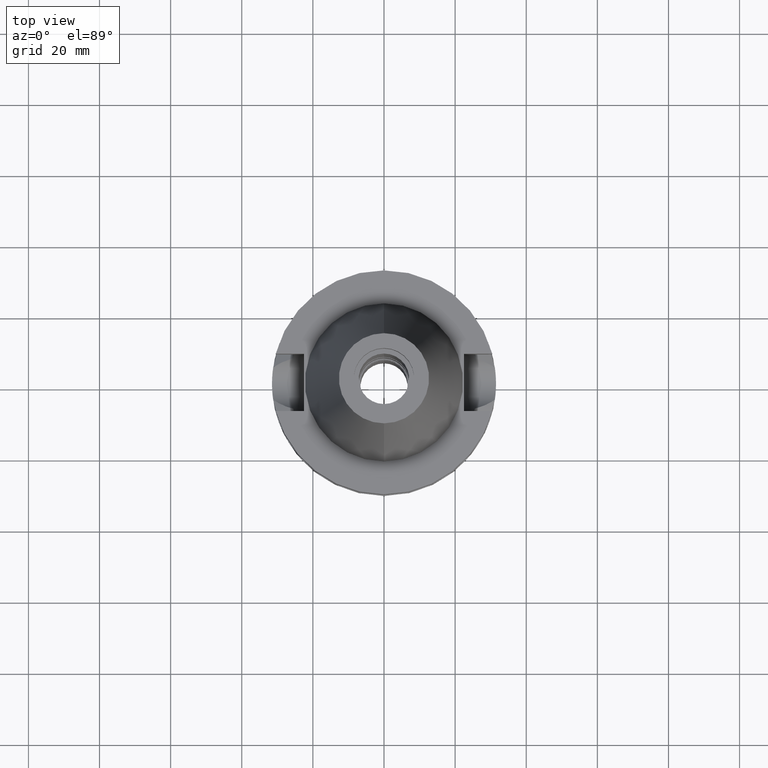
[diagram: clean part render]
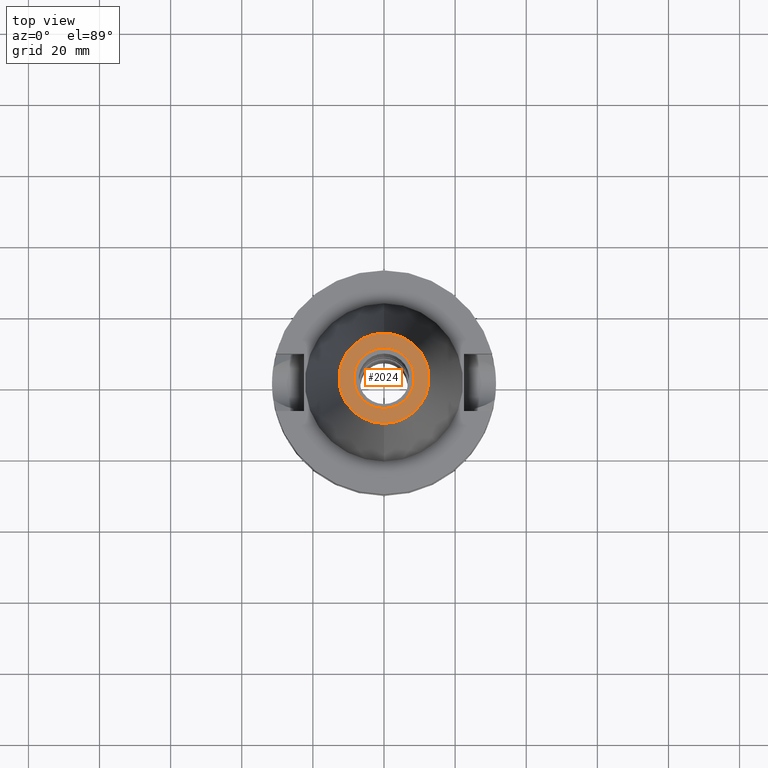
[diagram: same view with one face highlighted and labeled with its STEP entity id]
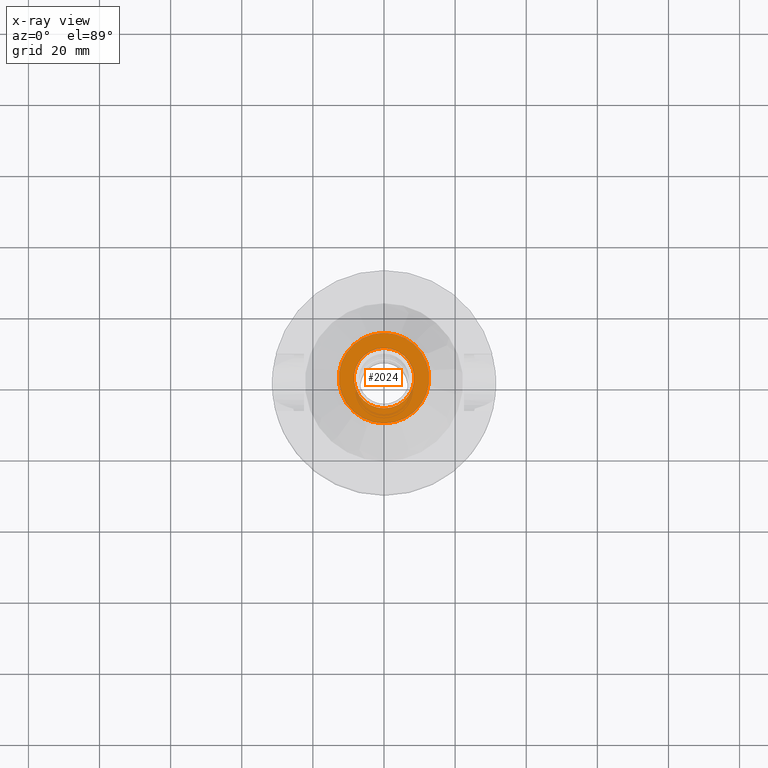
[diagram: x-ray of the same camera — body ghosted, the highlighted face saturated]
A machine part, top view. The second image highlights one B-rep face of the part: STEP entity #2024.
The next image is the same camera in x-ray: the body ghosted, the highlighted face saturated — about 0% of this face is hidden behind the body in this view.
In plain terms, the highlighted planar face has unit normal (0, 0, -1).
Its self-contained STEP definition (entity closure, byte-faithful):
#34 = DIRECTION ( 'NONE',  ( 0.0000000000000000000, 0.0000000000000000000, 1.000000000000000000 ) ) ;
#61 = VERTEX_POINT ( 'NONE', #859 ) ;
#192 = AXIS2_PLACEMENT_3D ( 'NONE', #1468, #34, #1944 ) ;
#224 = AXIS2_PLACEMENT_3D ( 'NONE', #1011, #1745, #1974 ) ;
#238 = EDGE_CURVE ( 'NONE', #1304, #654, #771, .T. ) ;
#396 = DIRECTION ( 'NONE',  ( 0.0000000000000000000, 1.000000000000000000, 0.0000000000000000000 ) ) ;
#455 = DIRECTION ( 'NONE',  ( 0.0000000000000000000, -1.000000000000000000, 0.0000000000000000000 ) ) ;
#547 = CIRCLE ( 'NONE', #224, 8.500000000000000000 ) ;
#587 = FACE_BOUND ( 'NONE', #987, .T. ) ;
#647 = AXIS2_PLACEMENT_3D ( 'NONE', #2798, #666, #396 ) ;
#654 = VERTEX_POINT ( 'NONE', #1613 ) ;
#666 = DIRECTION ( 'NONE',  ( 0.0000000000000000000, 0.0000000000000000000, -1.000000000000000000 ) ) ;
#694 = DIRECTION ( 'NONE',  ( 0.0000000000000000000, 0.0000000000000000000, -1.000000000000000000 ) ) ;
#771 = CIRCLE ( 'NONE', #192, 8.500000000000000000 ) ;
#859 = CARTESIAN_POINT ( 'NONE',  ( 0.0000000000000000000, -12.68766899429999917, 65.40000000000000568 ) ) ;
#897 = CARTESIAN_POINT ( 'NONE',  ( 0.0000000000000000000, 12.68766899429999917, 65.40000000000000568 ) ) ;
#987 = EDGE_LOOP ( 'NONE', ( #1524, #2094 ) ) ;
#1011 = CARTESIAN_POINT ( 'NONE',  ( 0.0000000000000000000, 0.0000000000000000000, 65.40000000000000568 ) ) ;
#1134 = VERTEX_POINT ( 'NONE', #897 ) ;
#1286 = DIRECTION ( 'NONE',  ( 0.0000000000000000000, 0.0000000000000000000, -1.000000000000000000 ) ) ;
#1304 = VERTEX_POINT ( 'NONE', #2021 ) ;
#1468 = CARTESIAN_POINT ( 'NONE',  ( 0.0000000000000000000, 0.0000000000000000000, 65.40000000000000568 ) ) ;
#1494 = CIRCLE ( 'NONE', #3096, 12.68766899429999917 ) ;
#1495 = DIRECTION ( 'NONE',  ( 0.0000000000000000000, -1.000000000000000000, 0.0000000000000000000 ) ) ;
#1511 = FACE_OUTER_BOUND ( 'NONE', #1823, .T. ) ;
#1524 = ORIENTED_EDGE ( 'NONE', *, *, #3037, .F. ) ;
#1613 = CARTESIAN_POINT ( 'NONE',  ( 0.0000000000000000000, 8.500000000000000000, 65.40000000000000568 ) ) ;
#1689 = EDGE_CURVE ( 'NONE', #61, #1134, #1494, .T. ) ;
#1745 = DIRECTION ( 'NONE',  ( 0.0000000000000000000, 0.0000000000000000000, 1.000000000000000000 ) ) ;
#1823 = EDGE_LOOP ( 'NONE', ( #2713, #2154 ) ) ;
#1844 = AXIS2_PLACEMENT_3D ( 'NONE', #2758, #1286, #1495 ) ;
#1887 = CARTESIAN_POINT ( 'NONE',  ( 0.0000000000000000000, 0.0000000000000000000, 65.40000000000000568 ) ) ;
#1944 = DIRECTION ( 'NONE',  ( 0.0000000000000000000, -1.000000000000000000, 0.0000000000000000000 ) ) ;
#1974 = DIRECTION ( 'NONE',  ( 0.0000000000000000000, 1.000000000000000000, 0.0000000000000000000 ) ) ;
#1986 = PLANE ( 'NONE',  #1844 ) ;
#2021 = CARTESIAN_POINT ( 'NONE',  ( 0.0000000000000000000, -8.500000000000000000, 65.40000000000000568 ) ) ;
#2024 = ADVANCED_FACE ( 'NONE', ( #1511, #587 ), #1986, .F. ) ;
#2094 = ORIENTED_EDGE ( 'NONE', *, *, #238, .F. ) ;
#2140 = EDGE_CURVE ( 'NONE', #1134, #61, #2505, .T. ) ;
#2154 = ORIENTED_EDGE ( 'NONE', *, *, #1689, .F. ) ;
#2505 = CIRCLE ( 'NONE', #647, 12.68766899429999917 ) ;
#2713 = ORIENTED_EDGE ( 'NONE', *, *, #2140, .F. ) ;
#2758 = CARTESIAN_POINT ( 'NONE',  ( 0.0000000000000000000, 0.0000000000000000000, 65.40000000000000568 ) ) ;
#2798 = CARTESIAN_POINT ( 'NONE',  ( 0.0000000000000000000, 0.0000000000000000000, 65.40000000000000568 ) ) ;
#3037 = EDGE_CURVE ( 'NONE', #654, #1304, #547, .T. ) ;
#3096 = AXIS2_PLACEMENT_3D ( 'NONE', #1887, #694, #455 ) ;